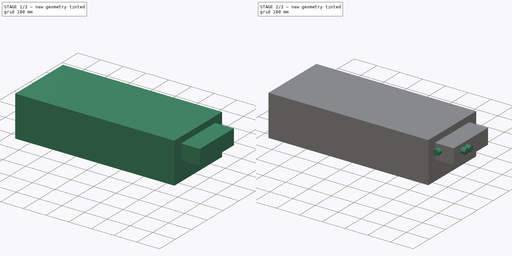
[diagram: build sequence overview — one tinted view per stage of 2, left to right]
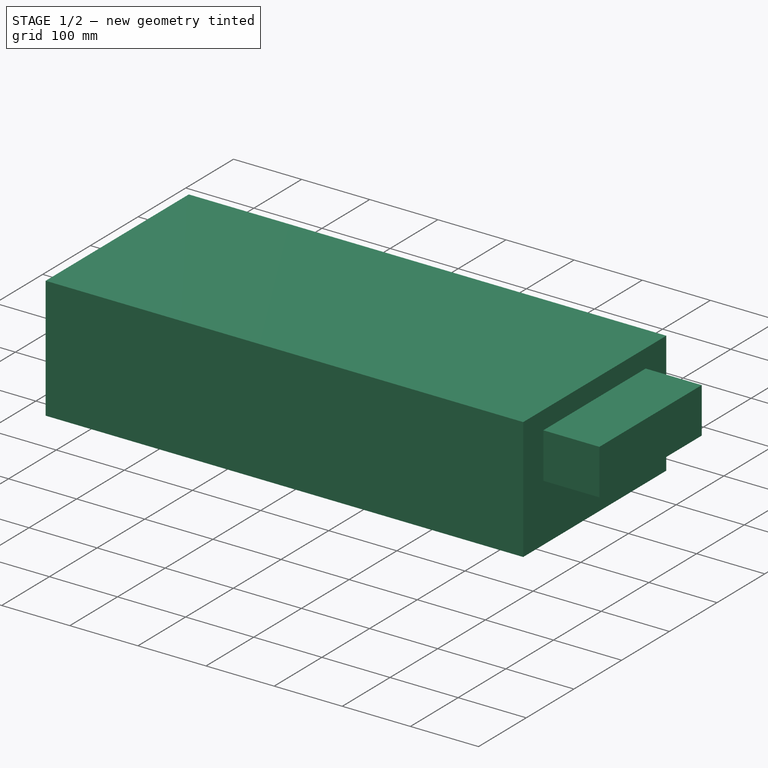
[diagram: stage 1 of 2 — iso view after this stage's code; geometry added in this stage tinted green]
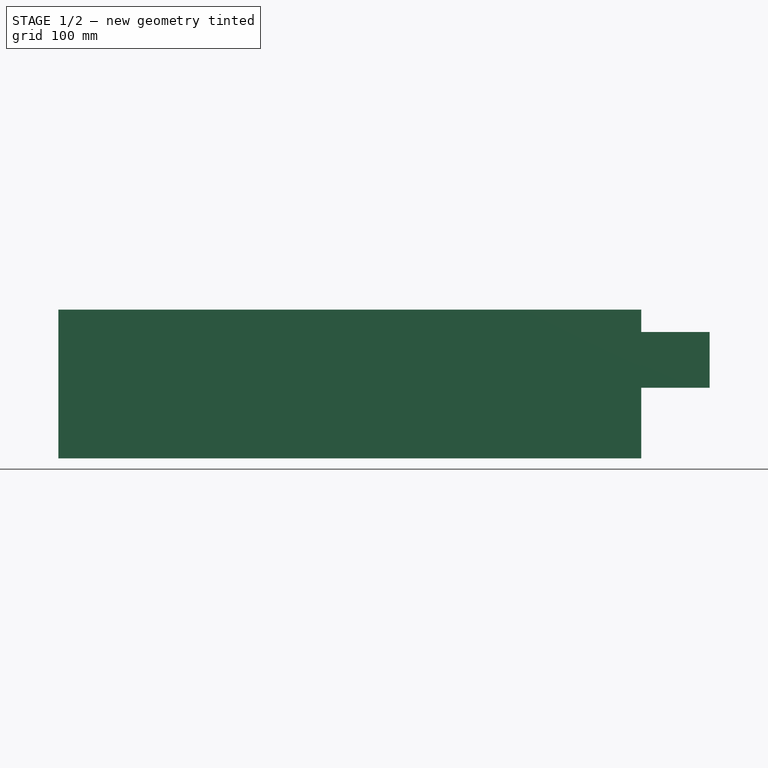
[diagram: stage 1 of 2 — front view after this stage's code; geometry added in this stage tinted green]
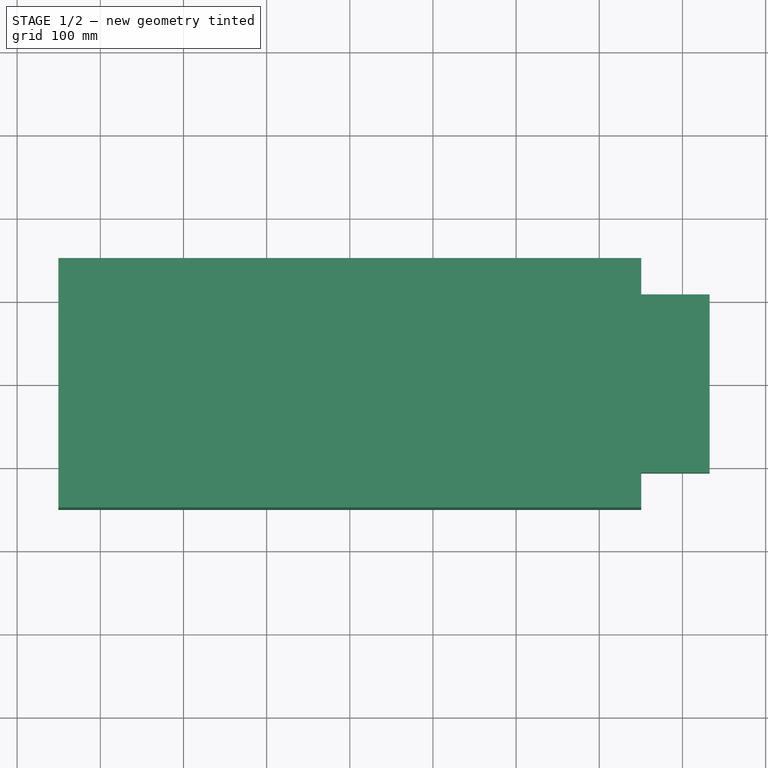
[diagram: stage 1 of 2 — top view after this stage's code; geometry added in this stage tinted green]
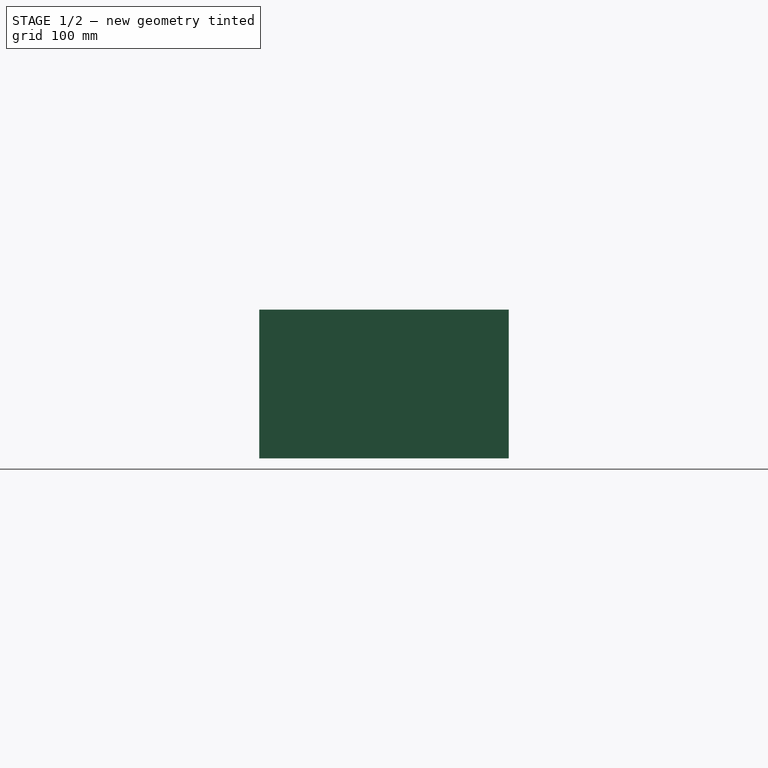
[diagram: stage 1 of 2 — right view after this stage's code; geometry added in this stage tinted green]
FCSTD DOCUMENT  (FreeCAD 1.0R38641 +468 (Git))
Label: orpheus_f
License: All rights reserved
LicenseURL: https://en.wikipedia.org/wiki/All_rights_reserved
objects: PartDesign::CoordinateSystem×4, Sketcher::SketchObject×4, PartDesign::Pad×4, Spreadsheet::Sheet×1, PartDesign::Body×1, App::Part×1
note: 25 computed .brp shape members not serialized (recipe doc carries the construction recipe); baked Part::Feature solids carry a one-line shape summary decoded from their .brp

FEATURE [PartDesign::CoordinateSystem] LCS_Origin
  AttacherType = Attacher::AttachEngine3D
  AttachmentSupport = -> [X_Axis001]
  MapMode = 2
FEATURE [Sketcher::SketchObject] Sketch
  ArcFitTolerance = 1e-06
  AttachmentSupport = -> [XY_Plane001]
  FullyConstrained = true
  MakeInternals = false
  MapMode = 5
  sketch-geometry (4):
    g0: LineSegment StartX=-350.5 StartY=150 StartZ=0 EndX=-350.5 EndY=-150 EndZ=0
    g1: LineSegment StartX=-350.5 StartY=-150 StartZ=0 EndX=350.5 EndY=-150 EndZ=0
    g2: LineSegment StartX=350.5 StartY=-150 StartZ=0 EndX=350.5 EndY=150 EndZ=0
    g3: LineSegment StartX=350.5 StartY=150 StartZ=0 EndX=-350.5 EndY=150 EndZ=0
  constraints (10):
    c: Coincident(g0,g1)
    c: Coincident(g1,g2)
    c: Coincident(g2,g3)
    c: Coincident(g3,g0)
    c: Vertical(g2)
    c: Horizontal(g1)
    c: Symmetric(g0,g2,g-2)
    c: Symmetric(g0,g0,g-1)
    c: DistanceX(g0,g2) = 701
    c: DistanceY(g0,g0) = 300
FEATURE [PartDesign::Pad] Pad
  Direction = (0,0,1)
  Length = 179
  Length2 = 10
  Profile = -> Sketch
  ReferenceAxis = -> Sketch [N_Axis]
  Refine = true
  Suppressed = false
  Type = 0
FEATURE [Sketcher::SketchObject] Sketch001
  ArcFitTolerance = 1e-06
  AttachmentOffset = pos=(0,0,85) rot=(0,0,1;0rad)
  AttachmentSupport = -> [XY_Plane001]
  ExternalGeometry = -> [Pad]
  FullyConstrained = true
  MakeInternals = false
  MapMode = 5
  Placement = pos=(0,0,85) rot=(0,0,1;0rad)
  expr: Constraints[11] = <<dimensions>>.protusion_side_offset
  expr: Constraints[8] = <<dimensions>>.protrusion_length
  sketch-geometry (4):
    g0: LineSegment StartX=350.5 StartY=106.75 StartZ=0 EndX=350.5 EndY=-107.75 EndZ=0
    g1: LineSegment StartX=350.5 StartY=-107.75 StartZ=0 EndX=432.75 EndY=-107.75 EndZ=0
    g2: LineSegment StartX=432.75 StartY=-107.75 StartZ=0 EndX=432.75 EndY=106.75 EndZ=0
    g3: LineSegment StartX=432.75 StartY=106.75 StartZ=0 EndX=350.5 EndY=106.75 EndZ=0
  constraints (12):
    c: Coincident(g0,g1)
    c: Coincident(g1,g2)
    c: Coincident(g2,g3)
    c: Coincident(g3,g0)
    c: Vertical(g0)
    c: Vertical(g2)
    c: Horizontal(g1)
    c: Horizontal(g3)
    c: DistanceX(g3,g3) = 82.25
    c: DistanceY(g2,g2) = 214.5
    c: PointOnObject(g0,g-3)
    c: DistanceY(g-3,g0) = 42.25
FEATURE [PartDesign::Pad] Pad001
  BaseFeature = -> Pad
  Direction = (0,0,1)
  Length = 67
  Length2 = 10
  Profile = -> Sketch001
  ReferenceAxis = -> Sketch001 [N_Axis]
  Refine = true
  Suppressed = false
  Type = 0
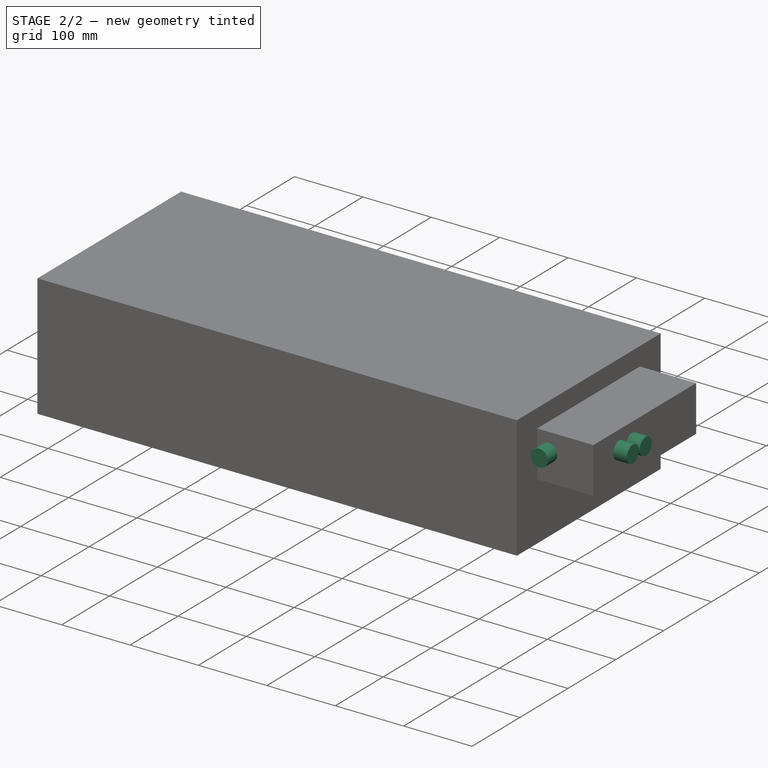
[diagram: stage 2 of 2 — iso view after this stage's code; geometry added in this stage tinted green]
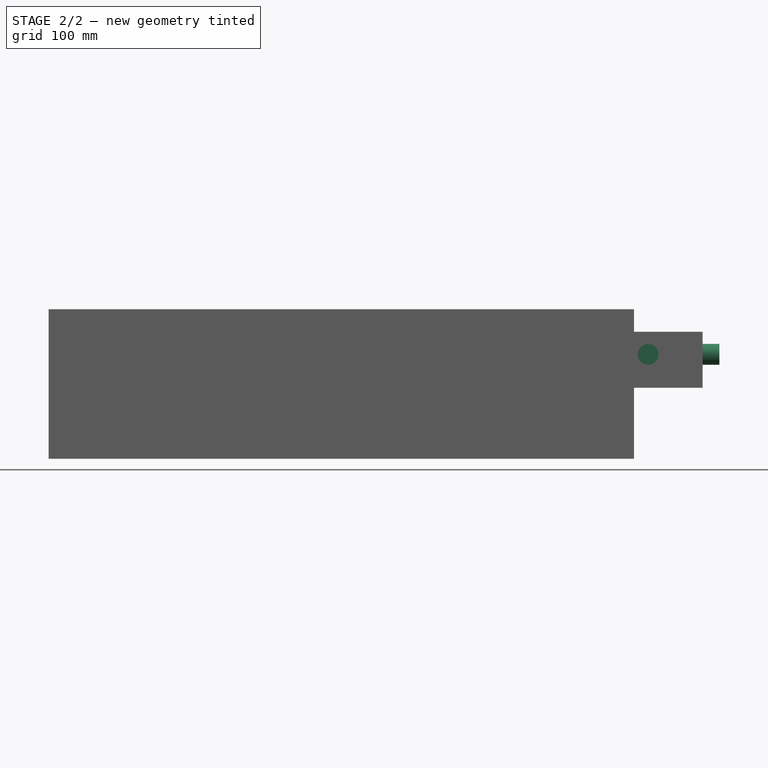
[diagram: stage 2 of 2 — front view after this stage's code; geometry added in this stage tinted green]
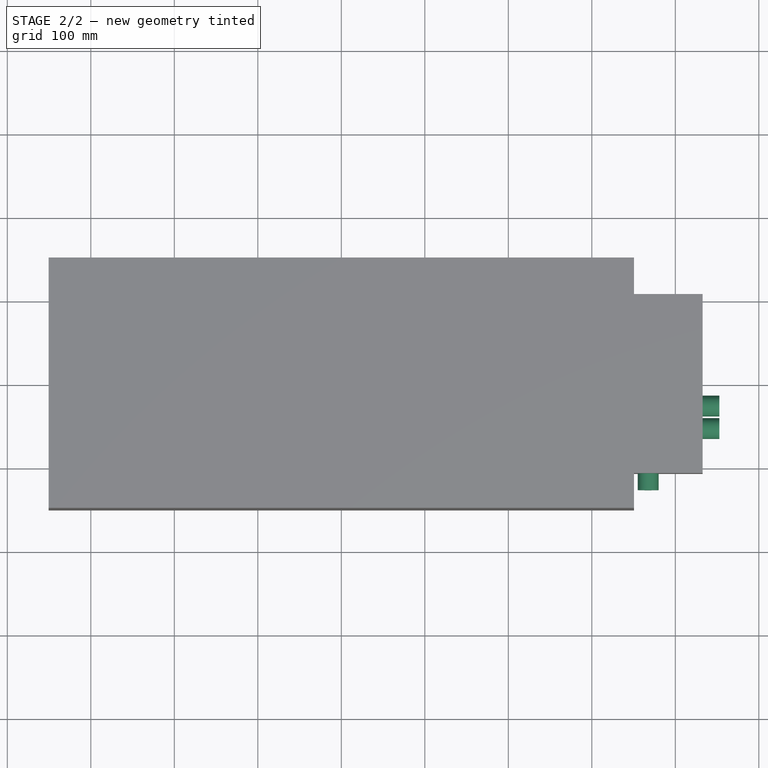
[diagram: stage 2 of 2 — top view after this stage's code; geometry added in this stage tinted green]
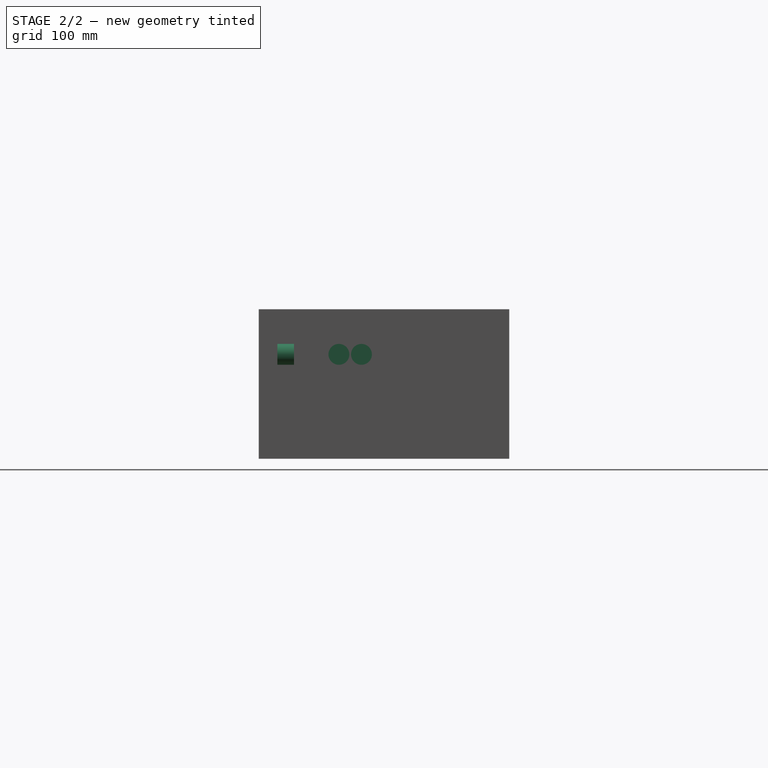
[diagram: stage 2 of 2 — right view after this stage's code; geometry added in this stage tinted green]
FEATURE [Sketcher::SketchObject] Sketch002
  ArcFitTolerance = 1e-06
  AttachmentOffset = pos=(0,0,432.75) rot=(0,0,1;0rad)
  AttachmentSupport = -> [YZ_Plane001]
  FullyConstrained = true
  MakeInternals = false
  MapMode = 5
  Placement = pos=(432.75,0,0) rot=(0.57735,0.57735,0.57735;2.0944rad)
  expr: .AttachmentOffset.Base.z = <<dimensions>>.body_length / 2 + <<dimensions>>.protrusion_length
  expr: Constraints[4] = <<dimensions>>.signal_output_x
  expr: Constraints[5] = 25 / 2
  expr: Constraints[6] = <<dimensions>>.beam_height
  expr: Constraints[7] = <<dimensions>>.signal_output_x
  sketch-geometry (3):
    g0: Circle CenterX=-54 CenterY=125 CenterZ=0 NormalX=0 NormalY=0 NormalZ=1 AngleXU=0 Radius=12.5
    g1: Circle CenterX=-27 CenterY=125 CenterZ=0 NormalX=0 NormalY=0 NormalZ=1 AngleXU=0 Radius=12.5
    g2: LineSegment [constr] StartX=-54 StartY=125 StartZ=0 EndX=-27 EndY=125 EndZ=0
  constraints (8):
    c: Equal(g1,g0)
    c: Coincident(g2,g0)
    c: Coincident(g2,g1)
    c: Horizontal(g2)
    c: DistanceX(g2,g2) = 27
    c: Radius(g0) = 12.5
    c: DistanceY(g-1,g1) = 125
    c: DistanceX(g1,g-1) = 27
FEATURE [Spreadsheet::Sheet] Spreadsheet  label="dimensions"
  cells = A1(beam_height)==125 mm; A2(width)==300 mm; A3(height)==179 mm; A4(body_length)==701 mm; A5(output_nipple_radius)==12.5 mm; A6(signal_output_x)==177 mm - width / 2; A7(length_to_nipple)==827 mm; A8(protrusion_length)==82.25 mm; A9(nipple_length)==20 mm; A10(sideport_offset)==17 mm; A11(protusion_side_offset)==42.25 mm
FEATURE [PartDesign::Pad] Pad002
  BaseFeature = -> Pad001
  Direction = (1,0,0)
  Length = 20
  Length2 = 10
  Profile = -> Sketch002
  ReferenceAxis = -> Sketch002 [N_Axis]
  Refine = true
  Suppressed = false
  Type = 0
  expr: Length = <<dimensions>>.nipple_length
FEATURE [Sketcher::SketchObject] Sketch003
  ArcFitTolerance = 1e-06
  AttachmentOffset = pos=(0,0,107.75) rot=(0,0,1;0rad)
  AttachmentSupport = -> [XZ_Plane001]
  FullyConstrained = true
  MakeInternals = false
  MapMode = 5
  Placement = pos=(0,-107.75,2.39e-14) rot=(1,0,0;1.5708rad)
  expr: .AttachmentOffset.Base.z = <<dimensions>>.width / 2 - <<dimensions>>.protusion_side_offset
  expr: Constraints[0] = <<dimensions>>.output_nipple_radius
  expr: Constraints[1] = <<dimensions>>.beam_height
  expr: Constraints[2] = <<dimensions>>.body_length / 2 + <<dimensions>>.sideport_offset
  sketch-geometry (1):
    g0: Circle CenterX=367.5 CenterY=125 CenterZ=0 NormalX=0 NormalY=0 NormalZ=1 AngleXU=0 Radius=12.5
  constraints (3):
    c: Radius(g0) = 12.5
    c: DistanceY(g-1,g0) = 125
    c: DistanceX(g-1,g0) = 367.5
FEATURE [PartDesign::Pad] Pad003
  BaseFeature = -> Pad002
  Direction = (0,-1,2e-16)
  Length = 20
  Length2 = 10
  Profile = -> Sketch003
  ReferenceAxis = -> Sketch003 [N_Axis]
  Refine = true
  Suppressed = false
  Type = 0
  expr: Length = <<dimensions>>.nipple_length
FEATURE [PartDesign::Body] Body
  AllowCompound = false
  Group = -> [LCS_Origin,Sketch,Pad,Sketch001,Pad001,Sketch002,Pad002,Sketch003,Pad003]
  Origin = -> Origin001
  Tip = -> Pad003
FEATURE [PartDesign::CoordinateSystem] signal_output
  AttacherType = Attacher::AttachEngine3D
  AttachmentOffset = pos=(0,0,0) rot=(0,0,-1;1.5708rad)
  AttachmentSupport = -> [Pad003]
  MapMode = 11
  Placement = pos=(452.75,-27,125) rot=(0.57735,0.57735,0.57735;2.0944rad)
FEATURE [PartDesign::CoordinateSystem] idler_output
  AttacherType = Attacher::AttachEngine3D
  AttachmentOffset = pos=(0,0,0) rot=(0,0,-1;1.5708rad)
  AttachmentSupport = -> [Pad003]
  MapMode = 11
  Placement = pos=(452.75,-54,125) rot=(0.57735,0.57735,0.57735;2.0944rad)
FEATURE [PartDesign::CoordinateSystem] signal_compression_sideport
  AttacherType = Attacher::AttachEngine3D
  AttachmentOffset = pos=(0,0,0) rot=(0,0,-1;1.5708rad)
  AttachmentSupport = -> [Pad003]
  MapMode = 11
  Placement = pos=(367.5,-127.75,125) rot=(1,0,0;1.5708rad)
FEATURE [App::Part] Part  label="orpheus_f"
  Group = -> [Body,signal_output,idler_output,signal_compression_sideport]
  Origin = -> Origin
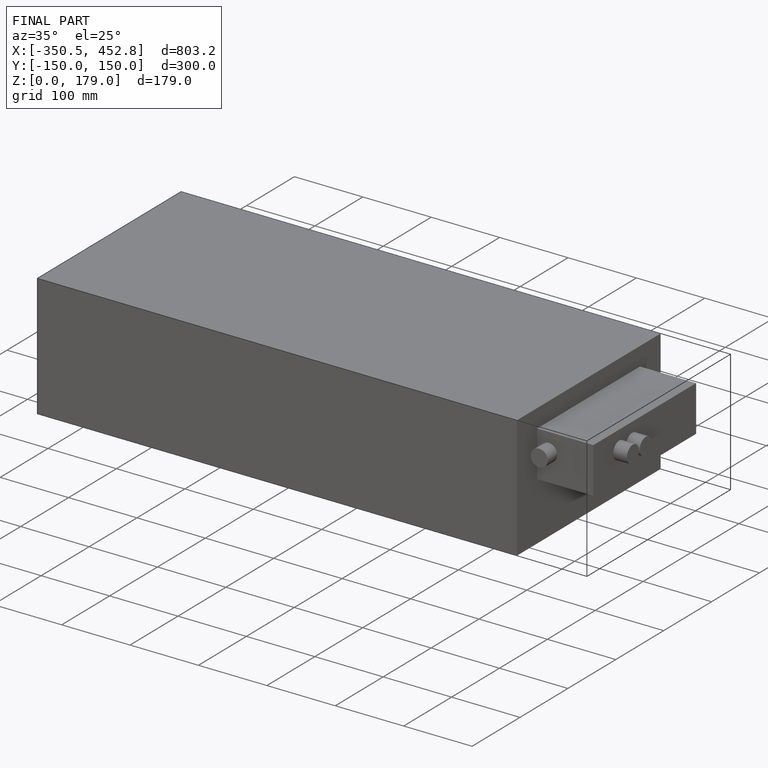
[diagram: finished part — iso view with bounding-box wireframe]
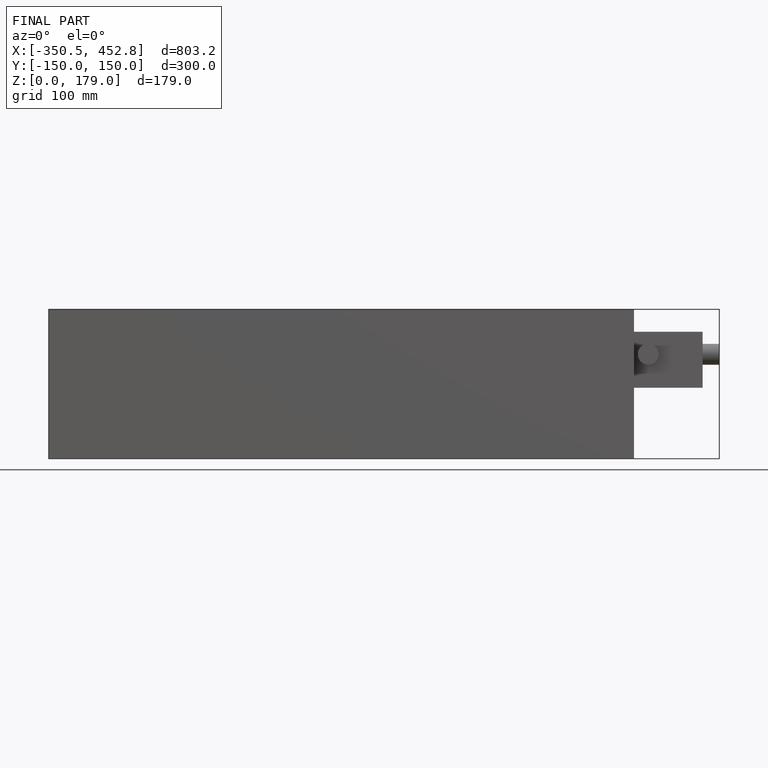
[diagram: finished part — front view with bounding-box wireframe]
